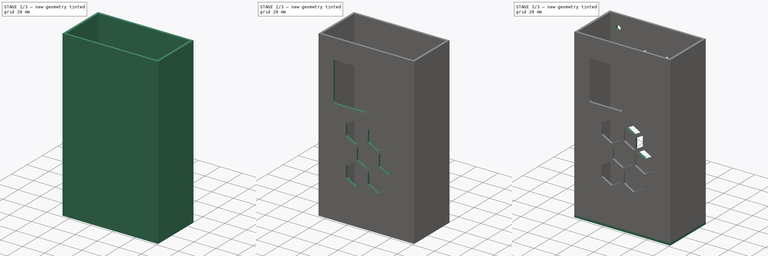
[diagram: build sequence overview — one tinted view per stage of 3, left to right]
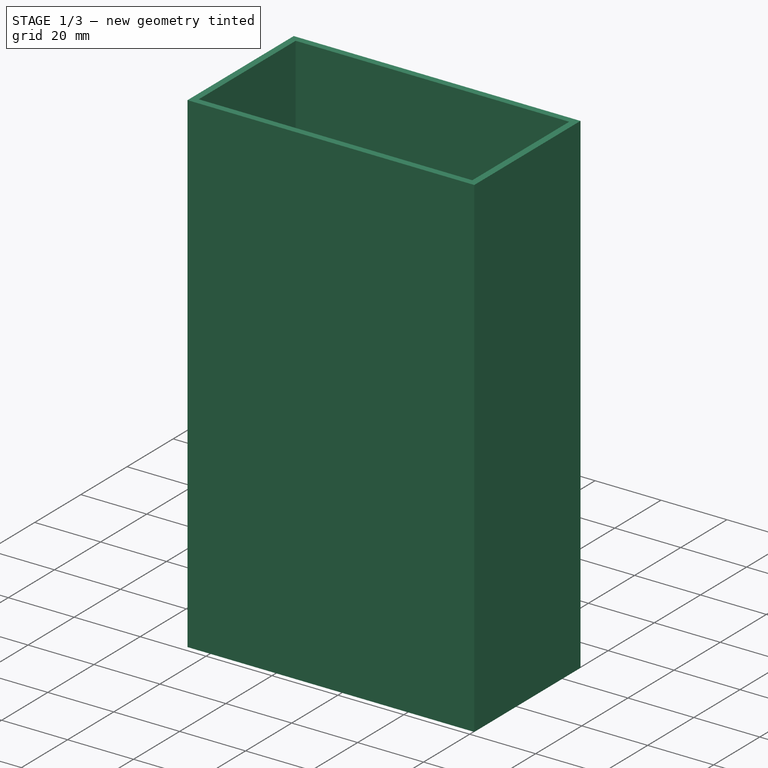
[diagram: stage 1 of 3 — iso view after this stage's code; geometry added in this stage tinted green]
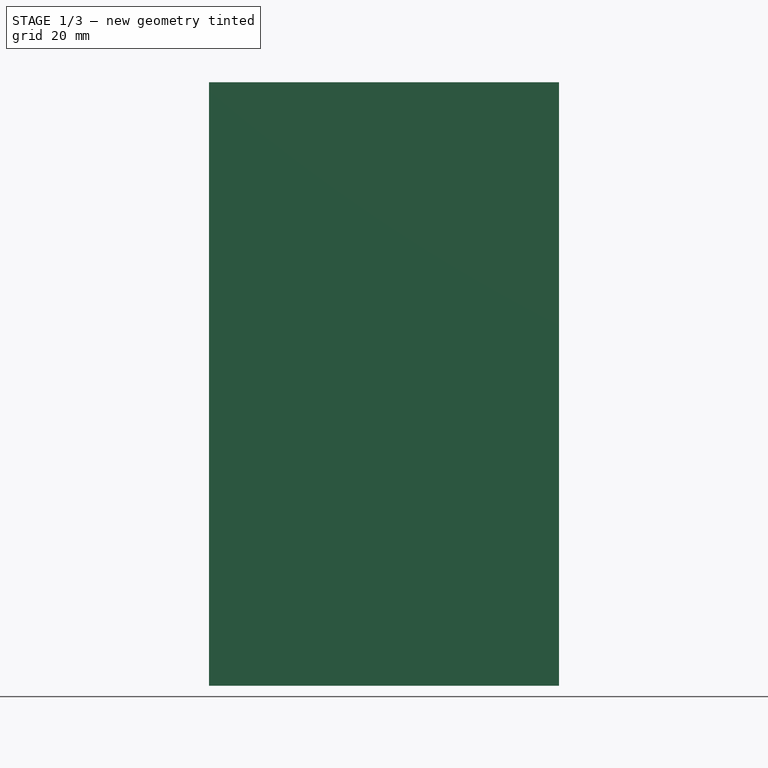
[diagram: stage 1 of 3 — front view after this stage's code; geometry added in this stage tinted green]
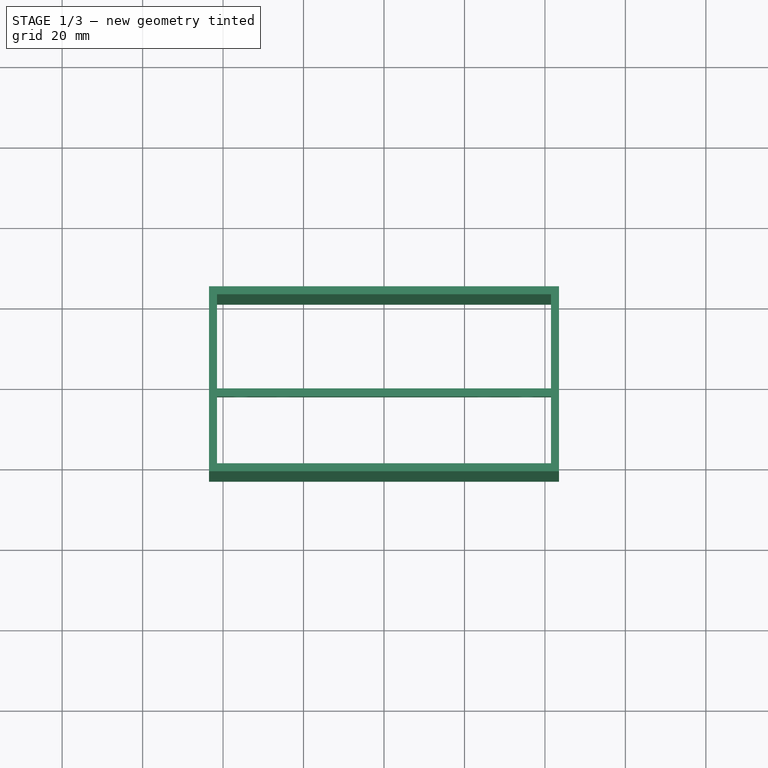
[diagram: stage 1 of 3 — top view after this stage's code; geometry added in this stage tinted green]
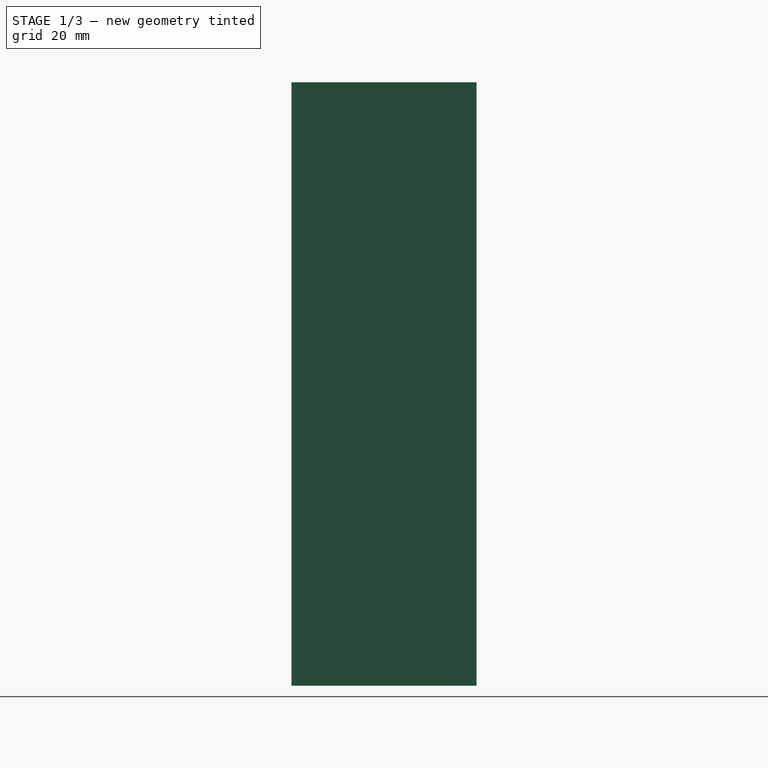
[diagram: stage 1 of 3 — right view after this stage's code; geometry added in this stage tinted green]
FCSTD DOCUMENT  (FreeCAD 0.19R24291 (Git))
Label: plotter-psu-case
License: All rights reserved
LicenseURL: http://en.wikipedia.org/wiki/All_rights_reserved
objects: Sketcher::SketchObject×5, PartDesign::Pad×3, PartDesign::Body×3, PartDesign::Pocket×2, Spreadsheet::Sheet×1, PartDesign::Fillet×1, App::Part×1
note: 20 computed .brp shape members not serialized (recipe doc carries the construction recipe); baked Part::Feature solids carry a one-line shape summary decoded from their .brp

FEATURE [Sketcher::SketchObject] Sketch
  FullyConstrained = true
  MapMode = 5
  Support = -> [XY_Plane001]
  expr: Constraints[12] = Spreadsheet.Thikness
  expr: Constraints[17] = Spreadsheet.Thikness
  expr: Constraints[18] = Spreadsheet.OuterLength
  expr: Constraints[19] = Spreadsheet.OuterWidth
  sketch-geometry (8):
    g0: LineSegment StartX=-43.5 StartY=23 StartZ=0 EndX=43.5 EndY=23 EndZ=0
    g1: LineSegment StartX=43.5 StartY=23 StartZ=0 EndX=43.5 EndY=-23 EndZ=0
    g2: LineSegment StartX=43.5 StartY=-23 StartZ=0 EndX=-43.5 EndY=-23 EndZ=0
    g3: LineSegment StartX=-43.5 StartY=-23 StartZ=0 EndX=-43.5 EndY=23 EndZ=0
    g4: LineSegment StartX=-41.5 StartY=21 StartZ=0 EndX=41.5 EndY=21 EndZ=0
    g5: LineSegment StartX=41.5 StartY=21 StartZ=0 EndX=41.5 EndY=-21 EndZ=0
    g6: LineSegment StartX=41.5 StartY=-21 StartZ=0 EndX=-41.5 EndY=-21 EndZ=0
    g7: LineSegment StartX=-41.5 StartY=-21 StartZ=0 EndX=-41.5 EndY=21 EndZ=0
  constraints (20):
    c: Coincident(g0,g1)
    c: Coincident(g1,g2)
    c: Coincident(g2,g3)
    c: Coincident(g3,g0)
    c: Symmetric(g1,g0,g-1)
    c: Symmetric(g2,g0,g-1)
    c: Vertical(g3)
    c: Horizontal(g0)
    c: Coincident(g4,g5)
    c: Coincident(g5,g6)
    c: Coincident(g6,g7)
    c: Coincident(g7,g4)
    c: DistanceX(g4,g0) = 2
    c: Symmetric(g4,g5,g-1)
    c: Symmetric(g6,g4,g-1)
    c: Vertical(g7)
    c: Horizontal(g4)
    c: DistanceY(g4,g0) = 2
    c: DistanceX(g2,g2) = 87
    c: DistanceY(g3,g3) = 46
FEATURE [Spreadsheet::Sheet] Spreadsheet
  cells = B4=Thikness; C4(Thikness)=2; B5=OuterLength; C5(OuterLength)==InnerLength + 2 * Thikness; B6=OuterWidth; C6(OuterWidth)==InnerWidth + 2 * Thikness; B7=OuterHeight; C7(OuterHeight)==InnerHeight; B8=InnerLength; C8(InnerLength)=83; B9=InnerWidth; C9(InnerWidth)=42; B10=InnerHeight; C10(InnerHeight)=150
FEATURE [PartDesign::Pad] Pad
  Direction = (1,1,1)
  Length = 150
  Length2 = 100
  Profile = -> Sketch
  Type = 0
  expr: Length = Spreadsheet.OuterHeight
FEATURE [PartDesign::Body] Body
  Group = -> [Sketch,Pad,Sketch002,Pocket,Fillet,Sketch003,Pocket001]
  Origin = -> Origin001
  Tip = -> Pocket001
FEATURE [Sketcher::SketchObject] Sketch004
  FullyConstrained = true
  MapMode = 5
  Placement = pos=(0,0,0) rot=(1,0,0;1.5708rad)
  Support = -> [XZ_Plane003]
  expr: Constraints[9] = Spreadsheet.OuterLength
  sketch-geometry (14):
    g0: LineSegment StartX=-43.5 StartY=13 StartZ=0 EndX=43.5 EndY=13 EndZ=0
    g1: LineSegment StartX=43.5 StartY=13 StartZ=0 EndX=43.5 EndY=0 EndZ=0
    g2: LineSegment StartX=43.5 StartY=0 StartZ=0 EndX=-43.5 EndY=0 EndZ=0
    g3: LineSegment StartX=-43.5 StartY=0 StartZ=0 EndX=-43.5 EndY=13 EndZ=0
    g4: Circle CenterX=-25 CenterY=4.5 CenterZ=0 NormalX=0 NormalY=0 NormalZ=1 AngleXU=0 Radius=2
    g5: Circle CenterX=25 CenterY=4.5 CenterZ=0 NormalX=0 NormalY=0 NormalZ=1 AngleXU=0 Radius=2
    g6: ArcOfCircle CenterX=35.5 CenterY=7.5 CenterZ=0 NormalX=0 NormalY=0 NormalZ=1 AngleXU=0 Radius=2 StartAngle=0 EndAngle=3.14159
    g7: ArcOfCircle CenterX=35.5 CenterY=4.5 CenterZ=0 NormalX=0 NormalY=0 NormalZ=1 AngleXU=0 Radius=2 StartAngle=3.14159 EndAngle=6.28319
    g8: LineSegment StartX=33.5 StartY=7.5 StartZ=0 EndX=33.5 EndY=4.5 EndZ=0
    g9: LineSegment StartX=37.5 StartY=7.5 StartZ=0 EndX=37.5 EndY=4.5 EndZ=0
    g10: ArcOfCircle CenterX=-35.5 CenterY=7.5 CenterZ=0 NormalX=0 NormalY=0 NormalZ=1 AngleXU=0 Radius=2 StartAngle=0 EndAngle=3.14159
    g11: ArcOfCircle CenterX=-35.5 CenterY=4.5 CenterZ=0 NormalX=0 NormalY=0 NormalZ=1 AngleXU=0 Radius=2 StartAngle=3.14159 EndAngle=6.28319
    g12: LineSegment StartX=-37.5 StartY=7.5 StartZ=0 EndX=-37.5 EndY=4.5 EndZ=0
    g13: LineSegment StartX=-33.5 StartY=7.5 StartZ=0 EndX=-33.5 EndY=4.5 EndZ=0
  constraints (35):
    c: Coincident(g0,g1)
    c: Coincident(g1,g2)
    c: Coincident(g2,g3)
    c: Coincident(g3,g0)
    c: Horizontal(g0)
    c: Horizontal(g2)
    c: Vertical(g1)
    c: Vertical(g3)
    c: Symmetric(g2,g1,g-1)
    c: DistanceX(g2,g2) = 87
    c: DistanceY(g1,g1) = 13
    c: Diameter(g4) = 4
    c: Equal(g4,g5)
    c: Symmetric(g4,g5,g-2)
    c: DistanceX(g4,g5) = 50
    c: DistanceY(g-1,g5) = 4.5
    c: Tangent(g6,g9) = 1.5708
    c: Tangent(g6,g8) = -1.5708
    c: Tangent(g8,g7) = -1.5708
    c: Tangent(g9,g7) = 1.5708
    c: Vertical(g8)
    c: Equal(g6,g7)
    c: Tangent(g10,g13) = 1.5708
    c: Tangent(g10,g12) = -1.5708
    c: Tangent(g12,g11) = -1.5708
    c: Tangent(g13,g11) = 1.5708
    c: Vertical(g12)
    c: Equal(g10,g11)
    c: Equal(g10,g6)
    c: Equal(g13,g8)
    c: Symmetric(g10,g6,g-2)
    c: DistanceX(g11,g7) = 71
    c: DistanceX(g11,g11) = 4
    c: DistanceY(g7,g6) = 3
    c: Horizontal(g11,g4)
FEATURE [PartDesign::Pad] Pad002
  Direction = (1,1,1)
  Length = 2
  Length2 = 100
  Placement = pos=(0,0,0) rot=(1,0,0;1.5708rad)
  Profile = -> Sketch004
  Type = 0
  expr: Length = Spreadsheet.Thikness
FEATURE [PartDesign::Body] Body002
  Group = -> [Sketch004,Pad002]
  Origin = -> Origin003
  Placement = pos=(0,23,150) rot=(0,0,1;0rad)
  Tip = -> Pad002
  expr: .Placement.Base.z = Spreadsheet.InnerHeight
  expr: .Placement.Base.y = Spreadsheet.OuterWidth / 2
FEATURE [App::Part] Part  label="PSUCase"
  Group = -> [Body,Body001,Body002]
  Origin = -> Origin
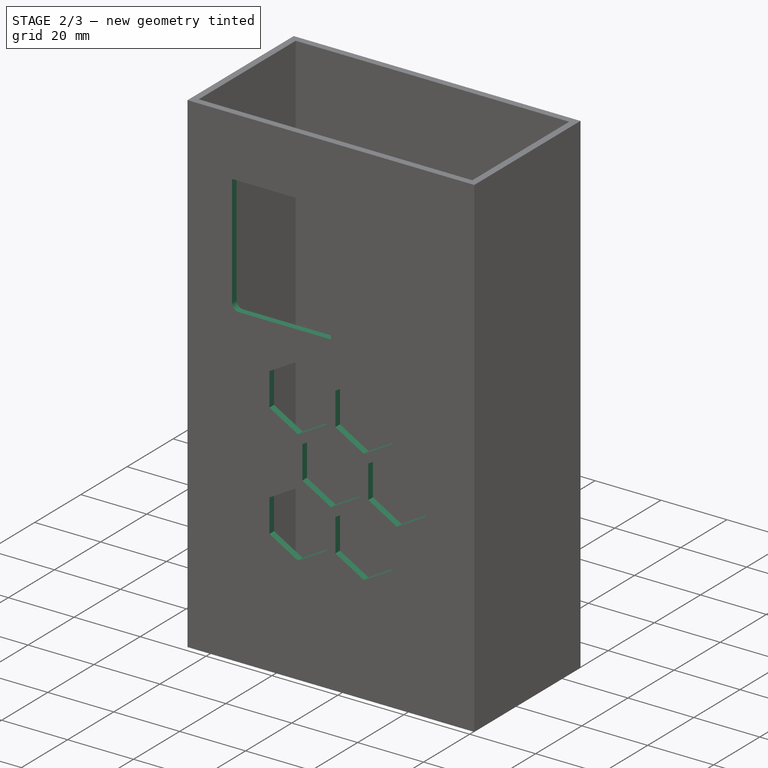
[diagram: stage 2 of 3 — iso view after this stage's code; geometry added in this stage tinted green]
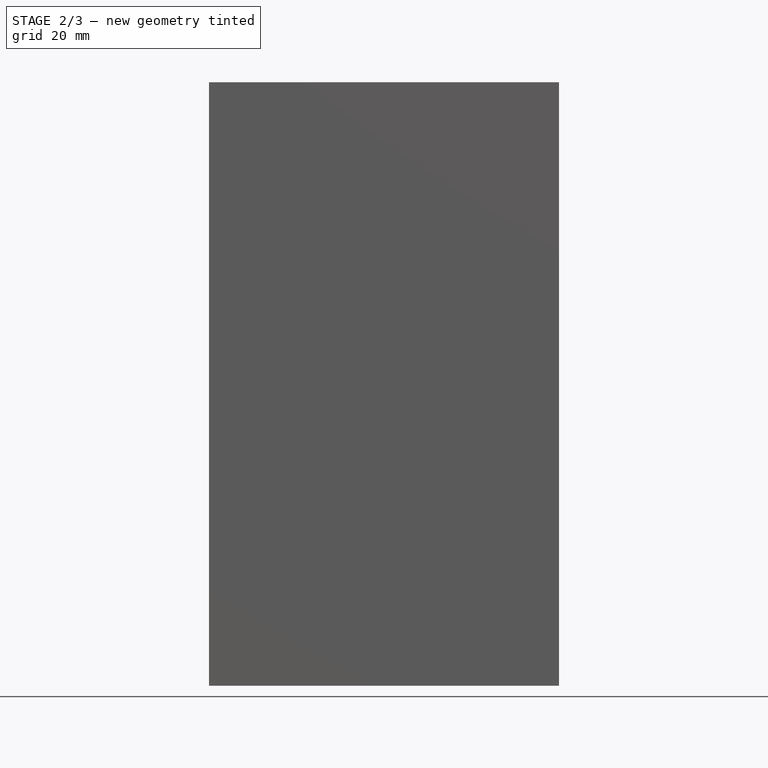
[diagram: stage 2 of 3 — front view after this stage's code; geometry added in this stage tinted green]
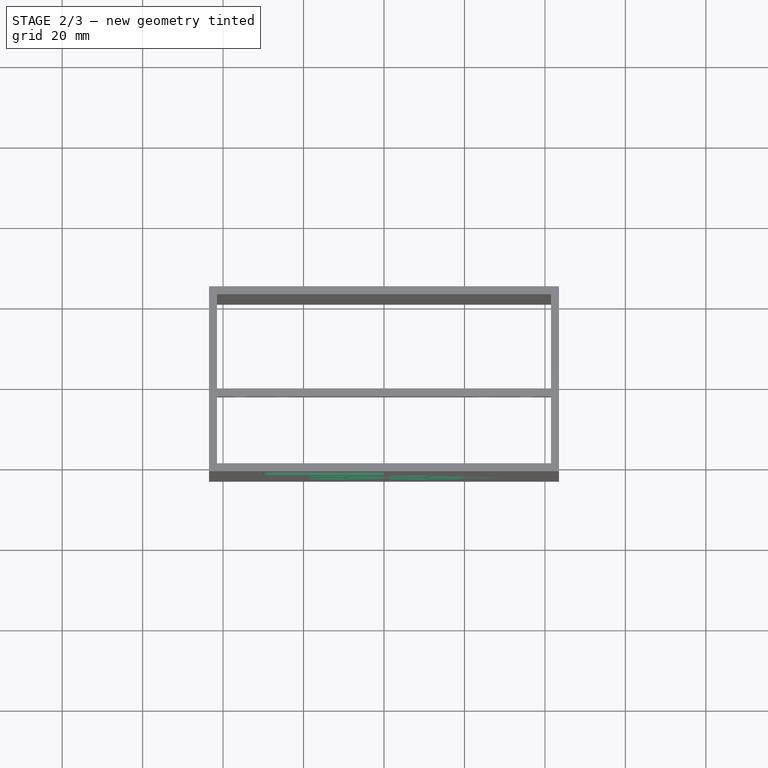
[diagram: stage 2 of 3 — top view after this stage's code; geometry added in this stage tinted green]
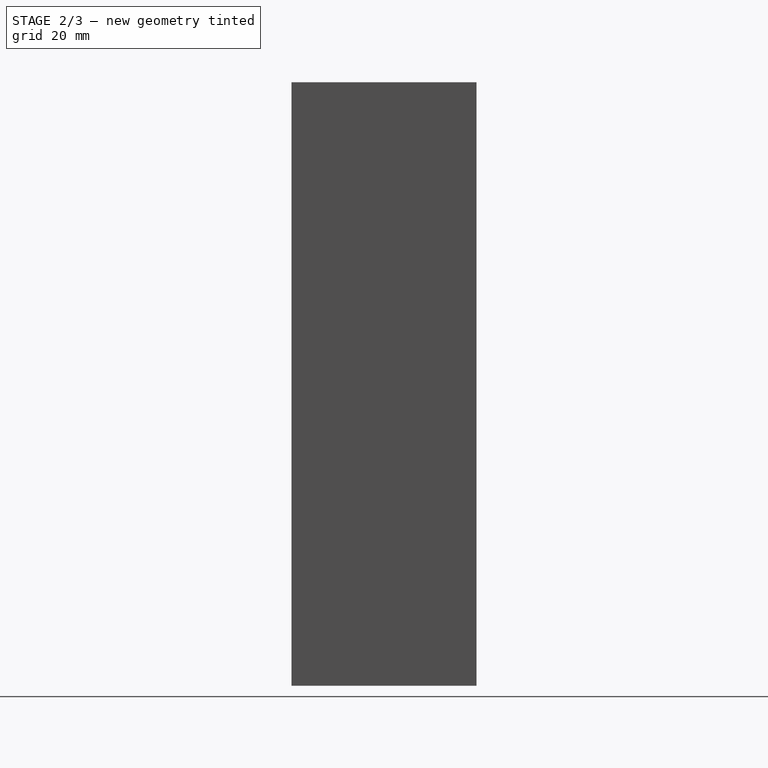
[diagram: stage 2 of 3 — right view after this stage's code; geometry added in this stage tinted green]
FEATURE [PartDesign::Body] Body001
  Group = -> [Sketch001,Pad001]
  Origin = -> Origin002
  Tip = -> Pad001
FEATURE [Sketcher::SketchObject] Sketch002
  FullyConstrained = true
  MapMode = 5
  Placement = pos=(-3.75e-14,-23,0) rot=(1,0,0;1.5708rad)
  Support = -> [Pad]
  sketch-geometry (46):
    g0: LineSegment StartX=-30 StartY=132 StartZ=0 EndX=0 EndY=132 EndZ=0
    g1: LineSegment StartX=0 StartY=132 StartZ=0 EndX=0 EndY=96 EndZ=0
    g2: LineSegment StartX=0 StartY=96 StartZ=0 EndX=-30 EndY=96 EndZ=0
    g3: LineSegment StartX=-30 StartY=96 StartZ=0 EndX=-30 EndY=132 EndZ=0
    g4: LineSegment StartX=-1.33975 StartY=72.3205 StartZ=0 EndX=-1.33975 EndY=82.3205 EndZ=0
    g5: LineSegment StartX=-1.33975 StartY=82.3205 StartZ=0 EndX=-10 EndY=87.3205 EndZ=0
    g6: LineSegment StartX=-10 StartY=87.3205 StartZ=0 EndX=-18.6603 EndY=82.3205 EndZ=0
    g7: LineSegment StartX=-18.6603 StartY=82.3205 StartZ=0 EndX=-18.6603 EndY=72.3205 EndZ=0
    g8: LineSegment StartX=-18.6603 StartY=72.3205 StartZ=0 EndX=-10 EndY=67.3205 EndZ=0
    g9: LineSegment StartX=-10 StartY=67.3205 StartZ=0 EndX=-1.33975 EndY=72.3205 EndZ=0
    g10: Circle CenterX=-10 CenterY=77.3205 CenterZ=0 NormalX=0 NormalY=0 NormalZ=1 AngleXU=0 Radius=10
    g11: LineSegment StartX=18.6603 StartY=72.3205 StartZ=0 EndX=18.6603 EndY=82.3205 EndZ=0
    g12: LineSegment StartX=18.6603 StartY=82.3205 StartZ=0 EndX=10 EndY=87.3205 EndZ=0
    g13: LineSegment StartX=10 StartY=87.3205 StartZ=0 EndX=1.33975 EndY=82.3205 EndZ=0
    g14: LineSegment StartX=1.33975 StartY=82.3205 StartZ=0 EndX=1.33975 EndY=72.3205 EndZ=0
    g15: LineSegment StartX=1.33975 StartY=72.3205 StartZ=0 EndX=10 EndY=67.3205 EndZ=0
    g16: LineSegment StartX=10 StartY=67.3205 StartZ=0 EndX=18.6603 EndY=72.3205 EndZ=0
    g17: Circle CenterX=10 CenterY=77.3205 CenterZ=0 NormalX=0 NormalY=0 NormalZ=1 AngleXU=0 Radius=10
    g18: LineSegment StartX=28.6603 StartY=55 StartZ=0 EndX=28.6603 EndY=65 EndZ=0
    g19: LineSegment StartX=28.6603 StartY=65 StartZ=0 EndX=20 EndY=70 EndZ=0
    g20: LineSegment StartX=20 StartY=70 StartZ=0 EndX=11.3397 EndY=65 EndZ=0
    g21: LineSegment StartX=11.3397 StartY=65 StartZ=0 EndX=11.3397 EndY=55 EndZ=0
    g22: LineSegment StartX=11.3397 StartY=55 StartZ=0 EndX=20 EndY=50 EndZ=0
    g23: LineSegment StartX=20 StartY=50 StartZ=0 EndX=28.6603 EndY=55 EndZ=0
    g24: Circle CenterX=20 CenterY=60 CenterZ=0 NormalX=0 NormalY=0 NormalZ=1 AngleXU=0 Radius=10
    g25: LineSegment StartX=18.6603 StartY=37.6795 StartZ=0 EndX=18.6603 EndY=47.6795 EndZ=0
    g26: LineSegment StartX=18.6603 StartY=47.6795 StartZ=0 EndX=10 EndY=52.6795 EndZ=0
    g27: LineSegment StartX=10 StartY=52.6795 StartZ=0 EndX=1.33975 EndY=47.6795 EndZ=0
    g28: LineSegment StartX=1.33975 StartY=47.6795 StartZ=0 EndX=1.33975 EndY=37.6795 EndZ=0
    g29: LineSegment StartX=1.33975 StartY=37.6795 StartZ=0 EndX=10 EndY=32.6795 EndZ=0
    g30: LineSegment StartX=10 StartY=32.6795 StartZ=0 EndX=18.6603 EndY=37.6795 EndZ=0
    g31: Circle CenterX=10 CenterY=42.6795 CenterZ=0 NormalX=0 NormalY=0 NormalZ=1 AngleXU=0 Radius=10
    g32: LineSegment StartX=8.66025 StartY=55 StartZ=0 EndX=8.66025 EndY=65 EndZ=0
    g33: LineSegment StartX=8.66025 StartY=65 StartZ=0 EndX=0 EndY=70 EndZ=0
    g34: LineSegment StartX=0 StartY=70 StartZ=0 EndX=-8.66025 EndY=65 EndZ=0
    g35: LineSegment StartX=-8.66025 StartY=65 StartZ=0 EndX=-8.66025 EndY=55 EndZ=0
    g36: LineSegment StartX=-8.66025 StartY=55 StartZ=0 EndX=0 EndY=50 EndZ=0
    g37: LineSegment StartX=0 StartY=50 StartZ=0 EndX=8.66025 EndY=55 EndZ=0
    g38: Circle CenterX=-7e-16 CenterY=60 CenterZ=0 NormalX=0 NormalY=0 NormalZ=1 AngleXU=0 Radius=10
    g39: LineSegment StartX=-1.33975 StartY=37.6795 StartZ=0 EndX=-1.33975 EndY=47.6795 EndZ=0
    g40: LineSegment StartX=-1.33975 StartY=47.6795 StartZ=0 EndX=-10 EndY=52.6795 EndZ=0
    g41: LineSegment StartX=-10 StartY=52.6795 StartZ=0 EndX=-18.6603 EndY=47.6795 EndZ=0
    g42: LineSegment StartX=-18.6603 StartY=47.6795 StartZ=0 EndX=-18.6603 EndY=37.6795 EndZ=0
    g43: LineSegment StartX=-18.6603 StartY=37.6795 StartZ=0 EndX=-10 EndY=32.6795 EndZ=0
    g44: LineSegment StartX=-10 StartY=32.6795 StartZ=0 EndX=-1.33975 EndY=37.6795 EndZ=0
    g45: Circle CenterX=-10 CenterY=42.6795 CenterZ=0 NormalX=0 NormalY=0 NormalZ=1 AngleXU=0 Radius=10
  constraints (114):
    c: Coincident(g0,g1)
    c: Coincident(g1,g2)
    c: Coincident(g2,g3)
    c: Coincident(g3,g0)
    c: Horizontal(g0)
    c: Horizontal(g2)
    c: Vertical(g1)
    c: Vertical(g3)
    c: DistanceX(g0,g0) = 30
    c: DistanceY(g1,g1) = 36
    c: DistanceY(g-1,g1) = 96
    c: Vertical(g1,g-1)
    c: Coincident(g4,g5)
    c: Coincident(g5,g6)
    c: Coincident(g6,g7)
    c: Coincident(g7,g8)
    c: Coincident(g8,g9)
    c: Coincident(g9,g4)
    c: Equal(g4, g5-g9) x5
    c: PointOnObject(g4,g10)
    c: PointOnObject(g5,g10)
    c: PointOnObject(g6,g10)
    c: PointOnObject(g7,g10)
    c: PointOnObject(g8,g10)
    c: PointOnObject(g9,g10)
    c: Vertical(g4)
    c: Coincident(g11,g12)
    c: Coincident(g12,g13)
    c: Coincident(g13,g14)
    c: Coincident(g14,g15)
    c: Coincident(g15,g16)
    c: Coincident(g16,g11)
    c: Equal(g11, g12-g16) x5
    c: PointOnObject(g11,g17)
    c: PointOnObject(g12,g17)
    c: PointOnObject(g13,g17)
    c: PointOnObject(g14,g17)
    c: PointOnObject(g15,g17)
    c: PointOnObject(g16,g17)
    c: Vertical(g11)
    c: Coincident(g18,g19)
    c: Coincident(g19,g20)
    c: Coincident(g20,g21)
    c: Coincident(g21,g22)
    c: Coincident(g22,g23)
    c: Coincident(g23,g18)
    c: Equal(g18, g19-g23) x5
    c: PointOnObject(g18,g24)
    c: PointOnObject(g19,g24)
    c: PointOnObject(g20,g24)
    c: PointOnObject(g21,g24)
    c: PointOnObject(g22,g24)
    c: PointOnObject(g23,g24)
    c: Vertical(g18)
    c: Coincident(g25,g26)
    c: Coincident(g26,g27)
    c: Coincident(g27,g28)
    c: Coincident(g28,g29)
    c: Coincident(g29,g30)
    c: Coincident(g30,g25)
    c: Equal(g25, g26-g30) x5
    c: PointOnObject(g25,g31)
    c: PointOnObject(g26,g31)
    c: PointOnObject(g27,g31)
    c: PointOnObject(g28,g31)
    c: PointOnObject(g29,g31)
    c: PointOnObject(g30,g31)
    c: Vertical(g25)
    c: Coincident(g32,g33)
    c: Coincident(g33,g34)
    c: Coincident(g34,g35)
    c: Coincident(g35,g36)
    c: Coincident(g36,g37)
    c: Coincident(g37,g32)
    c: Equal(g32, g33-g37) x5
    c: PointOnObject(g32,g38)
    c: PointOnObject(g33,g38)
    c: PointOnObject(g34,g38)
    c: PointOnObject(g35,g38)
    c: PointOnObject(g36,g38)
    c: PointOnObject(g37,g38)
    c: Vertical(g32)
    c: Coincident(g39,g40)
    c: Coincident(g40,g41)
    c: Coincident(g41,g42)
    c: Coincident(g42,g43)
    c: Coincident(g43,g44)
    c: Coincident(g44,g39)
    c: Equal(g39, g40-g44) x5
    c: PointOnObject(g39,g45)
    c: PointOnObject(g40,g45)
    c: PointOnObject(g41,g45)
    c: PointOnObject(g42,g45)
    c: PointOnObject(g43,g45)
    c: PointOnObject(g44,g45)
    c: Vertical(g39)
    c: Tangent(g10,g38)
    c: Tangent(g17,g10)
    c: Tangent(g38,g17)
    c: Tangent(g24,g17)
    c: Tangent(g24,g38)
    c: Tangent(g45,g38)
    c: Tangent(g31,g38)
    c: Tangent(g45,g31)
    c: Tangent(g31,g24)
    c: Distance(g27) = 10
    c: Distance(g33) = 10
    c: Distance(g39) = 10
    c: Distance(g5) = 10
    c: Distance(g13) = 10
    c: Distance(g20) = 10
    c: Horizontal(g39,g27)
    c: Vertical(g-1,g36)
    c: DistanceY(g-1,g36) = 50
FEATURE [PartDesign::Pocket] Pocket
  BaseFeature = -> Pad
  Length = 0
  Length2 = 100
  Profile = -> Sketch002
  Type = 2
FEATURE [PartDesign::Fillet] Fillet
  Base = -> Pocket [Edge106]
  BaseFeature = -> Pocket
  Radius = 2
  SupportTransform = false
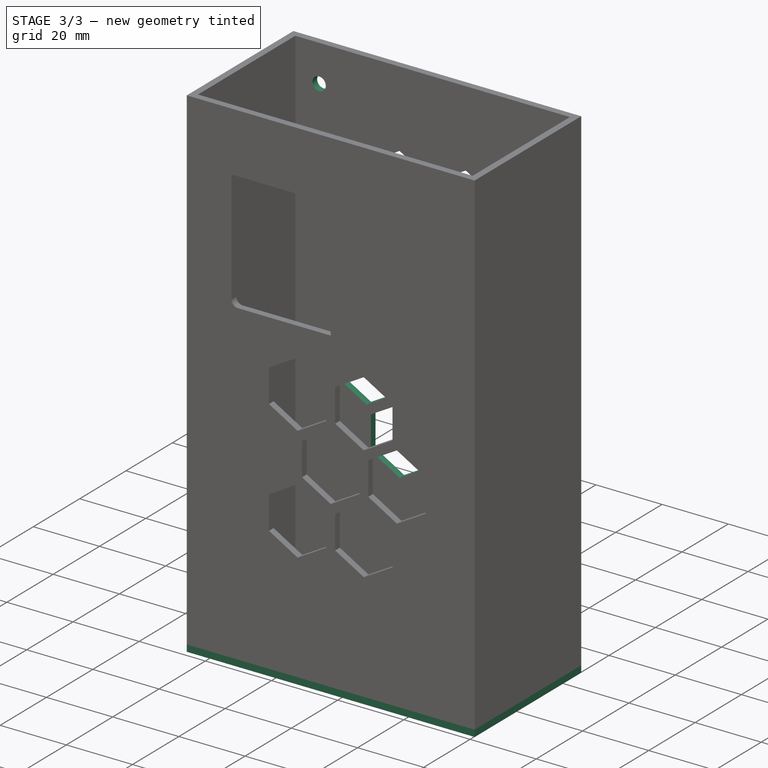
[diagram: stage 3 of 3 — iso view after this stage's code; geometry added in this stage tinted green]
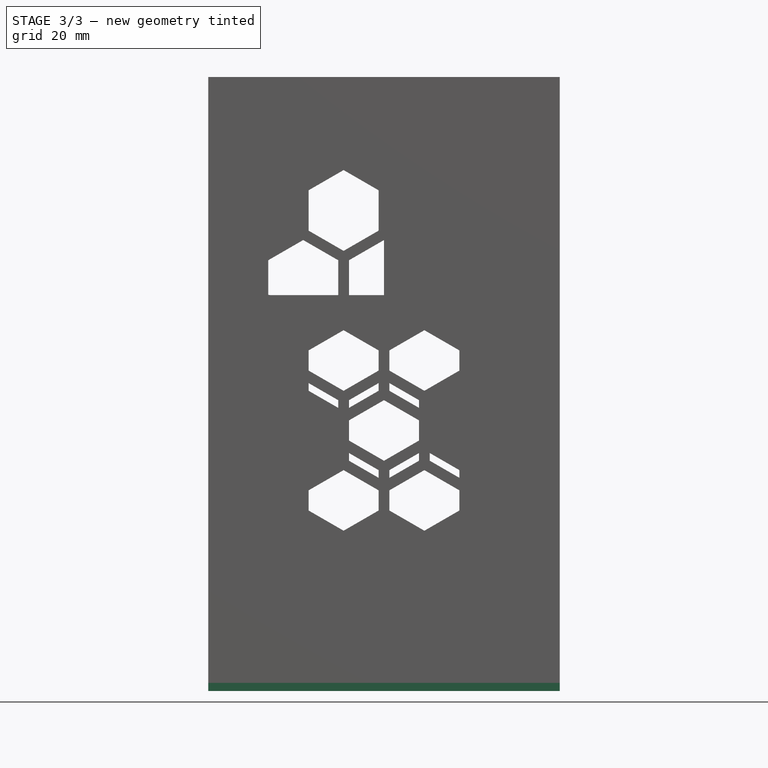
[diagram: stage 3 of 3 — front view after this stage's code; geometry added in this stage tinted green]
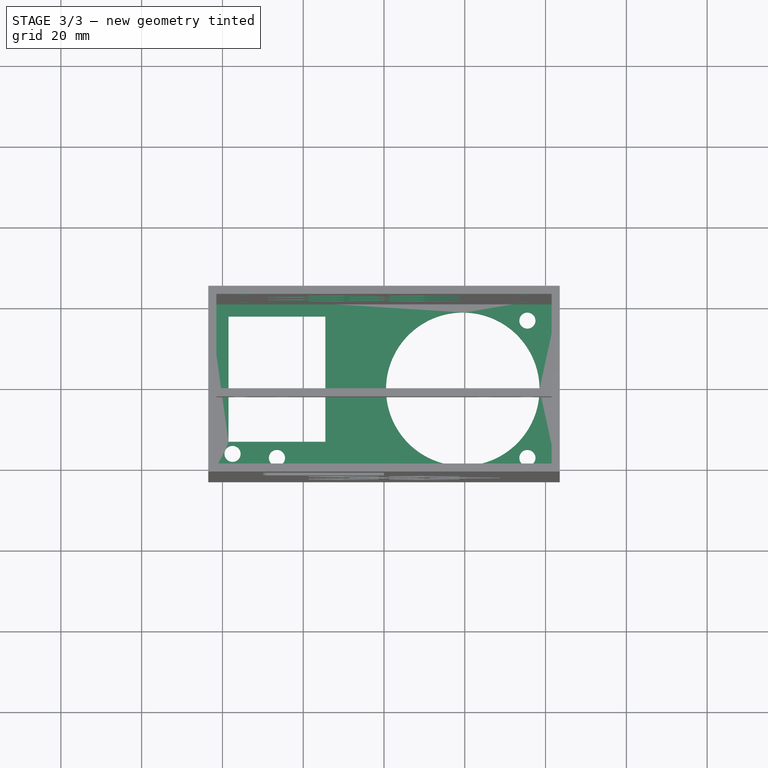
[diagram: stage 3 of 3 — top view after this stage's code; geometry added in this stage tinted green]
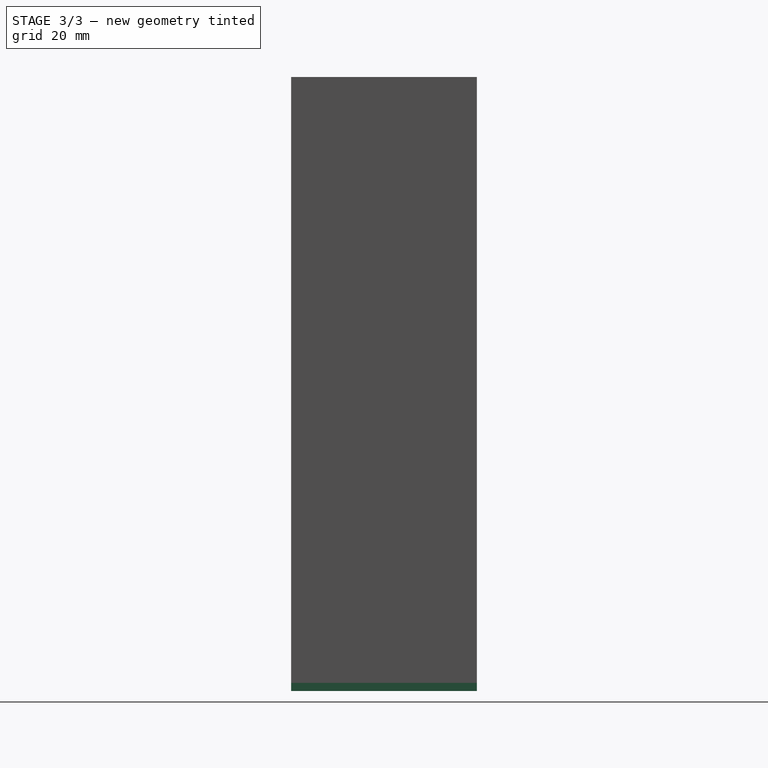
[diagram: stage 3 of 3 — right view after this stage's code; geometry added in this stage tinted green]
FEATURE [Sketcher::SketchObject] Sketch001
  FullyConstrained = true
  MapMode = 5
  Support = -> [XY_Plane002]
  expr: Constraints[35] = Spreadsheet.Thikness + 4
  expr: Constraints[36] = Spreadsheet.Thikness + 15
  expr: Constraints[34] = Spreadsheet.Thikness + 5
  expr: Constraints[33] = Spreadsheet.Thikness + 4
  expr: Constraints[30] = Spreadsheet.Thikness + 6
  expr: Constraints[32] = Spreadsheet.Thikness + 4
  expr: Constraints[29] = Spreadsheet.Thikness + 4
  expr: Constraints[8] = Spreadsheet.OuterLength
  expr: Constraints[9] = Spreadsheet.OuterWidth
  expr: Constraints[22] = 22 + Spreadsheet.Thikness
  expr: Constraints[23] = Spreadsheet.Thikness + 3
  expr: Constraints[24] = Spreadsheet.Thikness + 3
  sketch-geometry (13):
    g0: LineSegment StartX=-43.5 StartY=23 StartZ=0 EndX=43.5 EndY=23 EndZ=0
    g1: LineSegment StartX=43.5 StartY=23 StartZ=0 EndX=43.5 EndY=-23 EndZ=0
    g2: LineSegment StartX=43.5 StartY=-23 StartZ=0 EndX=-43.5 EndY=-23 EndZ=0
    g3: LineSegment StartX=-43.5 StartY=-23 StartZ=0 EndX=-43.5 EndY=23 EndZ=0
    g4: Circle CenterX=19.5 CenterY=0 CenterZ=0 NormalX=0 NormalY=0 NormalZ=1 AngleXU=0 Radius=19
    g5: LineSegment StartX=-38.5 StartY=18 StartZ=0 EndX=-14.5 EndY=18 EndZ=0
    g6: LineSegment StartX=-14.5 StartY=18 StartZ=0 EndX=-14.5 EndY=-13 EndZ=0
    g7: LineSegment StartX=-14.5 StartY=-13 StartZ=0 EndX=-38.5 EndY=-13 EndZ=0
    g8: LineSegment StartX=-38.5 StartY=-13 StartZ=0 EndX=-38.5 EndY=18 EndZ=0
    g9: Circle CenterX=35.5 CenterY=17 CenterZ=0 NormalX=0 NormalY=0 NormalZ=1 AngleXU=0 Radius=2
    g10: Circle CenterX=35.5 CenterY=-17 CenterZ=0 NormalX=0 NormalY=0 NormalZ=1 AngleXU=0 Radius=2
    g11: Circle CenterX=-37.5 CenterY=-16 CenterZ=0 NormalX=0 NormalY=0 NormalZ=1 AngleXU=0 Radius=2
    g12: Circle CenterX=-26.5 CenterY=-17 CenterZ=0 NormalX=0 NormalY=0 NormalZ=1 AngleXU=0 Radius=2
  constraints (37):
    c: Coincident(g0,g1)
    c: Coincident(g1,g2)
    c: Coincident(g2,g3)
    c: Coincident(g3,g0)
    c: Horizontal(g0)
    c: Vertical(g1)
    c: Symmetric(g0,g1,g-1)
    c: Symmetric(g2,g0,g-1)
    c: DistanceX(g0,g0) = 87
    c: DistanceY(g3,g3) = 46
    c: PointOnObject(g4,g-1)
    c: Diameter(g4) = 38
    c: Coincident(g5,g6)
    c: Coincident(g6,g7)
    c: Coincident(g7,g8)
    c: Coincident(g8,g5)
    c: Horizontal(g5)
    c: Horizontal(g7)
    c: Vertical(g6)
    c: Vertical(g8)
    c: DistanceX(g5,g5) = 24
    c: DistanceY(g6,g6) = 31
    c: DistanceX(g4,g1) = 24
    c: DistanceX(g2,g7) = 5
    c: DistanceY(g5,g0) = 5
    c: Diameter(g10) = 4
    c: Equal(g10,g12)
    c: Equal(g10,g11)
    c: Equal(g10,g9)
    c: DistanceY(g9,g0) = 6
    c: DistanceX(g9,g0) = 8
    c: Vertical(g10,g9)
    c: DistanceY(g1,g10) = 6
    c: DistanceX(g2,g11) = 6
    c: DistanceY(g2,g11) = 7
    c: DistanceY(g2,g12) = 6
    c: DistanceX(g2,g12) = 17
FEATURE [PartDesign::Pad] Pad001
  Direction = (1,1,1)
  Length = 2
  Length2 = 100
  Profile = -> Sketch001
  Reversed = true
  Type = 0
  expr: Length = Spreadsheet.Thikness
FEATURE [Sketcher::SketchObject] Sketch003
  FullyConstrained = true
  MapMode = 5
  Placement = pos=(0,23,0) rot=(0,0.707107,0.707107;3.14159rad)
  Support = -> [Fillet]
  sketch-geometry (74):
    g0: Circle CenterX=-34.3 CenterY=138.8 CenterZ=0 NormalX=0 NormalY=0 NormalZ=1 AngleXU=0 Radius=2
    g1: Circle CenterX=34.3 CenterY=138.8 CenterZ=0 NormalX=0 NormalY=0 NormalZ=1 AngleXU=0 Radius=2
    g2: Circle CenterX=-34.3 CenterY=28.6 CenterZ=0 NormalX=0 NormalY=0 NormalZ=1 AngleXU=0 Radius=2
    g3: Circle CenterX=34.3 CenterY=26.6 CenterZ=0 NormalX=0 NormalY=0 NormalZ=1 AngleXU=0 Radius=2
    g4: LineSegment StartX=8.66025 StartY=94.641 StartZ=0 EndX=8.66025 EndY=104.641 EndZ=0
    g5: LineSegment StartX=8.66025 StartY=104.641 StartZ=0 EndX=-7.11e-14 EndY=109.641 EndZ=0
    g6: LineSegment StartX=-7.11e-14 StartY=109.641 StartZ=0 EndX=-8.66025 EndY=104.641 EndZ=0
    g7: LineSegment StartX=-8.66025 StartY=104.641 StartZ=0 EndX=-8.66025 EndY=94.641 EndZ=0
    g8: LineSegment StartX=-8.66025 StartY=94.641 StartZ=0 EndX=-7.28e-14 EndY=89.641 EndZ=0
    g9: LineSegment StartX=-7.28e-14 StartY=89.641 StartZ=0 EndX=8.66025 EndY=94.641 EndZ=0
    g10: Circle CenterX=-7.41e-14 CenterY=99.641 CenterZ=0 NormalX=0 NormalY=0 NormalZ=1 AngleXU=0 Radius=10
    g11: LineSegment StartX=28.6603 StartY=94.641 StartZ=0 EndX=28.6603 EndY=104.641 EndZ=0
    g12: LineSegment StartX=28.6603 StartY=104.641 StartZ=0 EndX=20 EndY=109.641 EndZ=0
    g13: LineSegment StartX=20 StartY=109.641 StartZ=0 EndX=11.3397 EndY=104.641 EndZ=0
    g14: LineSegment StartX=11.3397 StartY=104.641 StartZ=0 EndX=11.3397 EndY=94.641 EndZ=0
    g15: LineSegment StartX=11.3397 StartY=94.641 StartZ=0 EndX=20 EndY=89.641 EndZ=0
    g16: LineSegment StartX=20 StartY=89.641 StartZ=0 EndX=28.6603 EndY=94.641 EndZ=0
    g17: Circle CenterX=20 CenterY=99.641 CenterZ=0 NormalX=0 NormalY=0 NormalZ=1 AngleXU=0 Radius=10
    g18: LineSegment StartX=-1.33975 StartY=77.3205 StartZ=0 EndX=-1.33975 EndY=87.3205 EndZ=0
    g19: LineSegment StartX=-1.33975 StartY=87.3205 StartZ=0 EndX=-10 EndY=92.3205 EndZ=0
    g20: LineSegment StartX=-10 StartY=92.3205 StartZ=0 EndX=-18.6603 EndY=87.3205 EndZ=0
    g21: LineSegment StartX=-18.6603 StartY=87.3205 StartZ=0 EndX=-18.6603 EndY=77.3205 EndZ=0
    g22: LineSegment StartX=-18.6603 StartY=77.3205 StartZ=0 EndX=-10 EndY=72.3205 EndZ=0
    g23: LineSegment StartX=-10 StartY=72.3205 StartZ=0 EndX=-1.33975 EndY=77.3205 EndZ=0
    g24: Circle CenterX=-10 CenterY=82.3205 CenterZ=0 NormalX=0 NormalY=0 NormalZ=1 AngleXU=0 Radius=10
    g25: LineSegment StartX=18.6603 StartY=77.3205 StartZ=0 EndX=18.6603 EndY=87.3205 EndZ=0
    g26: LineSegment StartX=18.6603 StartY=87.3205 StartZ=0 EndX=10 EndY=92.3205 EndZ=0
    g27: LineSegment StartX=10 StartY=92.3205 StartZ=0 EndX=1.33975 EndY=87.3205 EndZ=0
    g28: LineSegment StartX=1.33975 StartY=87.3205 StartZ=0 EndX=1.33975 EndY=77.3205 EndZ=0
    g29: LineSegment StartX=1.33975 StartY=77.3205 StartZ=0 EndX=10 EndY=72.3205 EndZ=0
    g30: LineSegment StartX=10 StartY=72.3205 StartZ=0 EndX=18.6603 EndY=77.3205 EndZ=0
    g31: Circle CenterX=10 CenterY=82.3205 CenterZ=0 NormalX=0 NormalY=0 NormalZ=1 AngleXU=0 Radius=10
    g32: LineSegment StartX=-1.33975 StartY=111.962 StartZ=0 EndX=-1.33975 EndY=121.962 EndZ=0
    g33: LineSegment StartX=-1.33975 StartY=121.962 StartZ=0 EndX=-10 EndY=126.962 EndZ=0
    g34: LineSegment StartX=-10 StartY=126.962 StartZ=0 EndX=-18.6603 EndY=121.962 EndZ=0
    g35: LineSegment StartX=-18.6603 StartY=121.962 StartZ=0 EndX=-18.6603 EndY=111.962 EndZ=0
    g36: LineSegment StartX=-18.6603 StartY=111.962 StartZ=0 EndX=-10 EndY=106.962 EndZ=0
    g37: LineSegment StartX=-10 StartY=106.962 StartZ=0 EndX=-1.33975 EndY=111.962 EndZ=0
    g38: Circle CenterX=-10 CenterY=116.962 CenterZ=0 NormalX=0 NormalY=0 NormalZ=1 AngleXU=0 Radius=10
    g39: LineSegment StartX=18.6603 StartY=111.962 StartZ=0 EndX=18.6603 EndY=121.962 EndZ=0
    g40: LineSegment StartX=18.6603 StartY=121.962 StartZ=0 EndX=10 EndY=126.962 EndZ=0
    g41: LineSegment StartX=10 StartY=126.962 StartZ=0 EndX=1.33975 EndY=121.962 EndZ=0
    g42: LineSegment StartX=1.33975 StartY=121.962 StartZ=0 EndX=1.33975 EndY=111.962 EndZ=0
    g43: LineSegment StartX=1.33975 StartY=111.962 StartZ=0 EndX=10 EndY=106.962 EndZ=0
    g44: LineSegment StartX=10 StartY=106.962 StartZ=0 EndX=18.6603 EndY=111.962 EndZ=0
    g45: Circle CenterX=10 CenterY=116.962 CenterZ=0 NormalX=0 NormalY=0 NormalZ=1 AngleXU=0 Radius=10
    g46: LineSegment StartX=8.66025 StartY=60 StartZ=0 EndX=8.66025 EndY=70 EndZ=0
    g47: LineSegment StartX=8.66025 StartY=70 StartZ=0 EndX=-1.8e-15 EndY=75 EndZ=0
    g48: LineSegment StartX=-1.8e-15 StartY=75 StartZ=0 EndX=-8.66025 EndY=70 EndZ=0
    g49: LineSegment StartX=-8.66025 StartY=70 StartZ=0 EndX=-8.66025 EndY=60 EndZ=0
    g50: LineSegment StartX=-8.66025 StartY=60 StartZ=0 EndX=0 EndY=55 EndZ=0
    g51: LineSegment StartX=0 StartY=55 StartZ=0 EndX=8.66025 EndY=60 EndZ=0
    g52: Circle CenterX=-7.93e-14 CenterY=65 CenterZ=0 NormalX=0 NormalY=0 NormalZ=1 AngleXU=0 Radius=10
    g53: LineSegment StartX=28.6603 StartY=60 StartZ=0 EndX=28.6603 EndY=70 EndZ=0
    g54: LineSegment StartX=28.6603 StartY=70 StartZ=0 EndX=20 EndY=75 EndZ=0
    g55: LineSegment StartX=20 StartY=75 StartZ=0 EndX=11.3397 EndY=70 EndZ=0
    g56: LineSegment StartX=11.3397 StartY=70 StartZ=0 EndX=11.3397 EndY=60 EndZ=0
    g57: LineSegment StartX=11.3397 StartY=60 StartZ=0 EndX=20 EndY=55 EndZ=0
    g58: LineSegment StartX=20 StartY=55 StartZ=0 EndX=28.6603 EndY=60 EndZ=0
    g59: Circle CenterX=20 CenterY=65 CenterZ=0 NormalX=0 NormalY=0 NormalZ=1 AngleXU=0 Radius=10
    g60: LineSegment StartX=10 StartY=57.6795 StartZ=0 EndX=1.33975 EndY=52.6795 EndZ=0
    g61: LineSegment StartX=18.6603 StartY=42.6795 StartZ=0 EndX=18.6603 EndY=52.6795 EndZ=0
    g62: LineSegment StartX=18.6603 StartY=52.6795 StartZ=0 EndX=10 EndY=57.6795 EndZ=0
    g63: LineSegment StartX=1.33975 StartY=52.6795 StartZ=0 EndX=1.33975 EndY=42.6795 EndZ=0
    g64: LineSegment StartX=1.33975 StartY=42.6795 StartZ=0 EndX=10 EndY=37.6795 EndZ=0
    g65: LineSegment StartX=10 StartY=37.6795 StartZ=0 EndX=18.6603 EndY=42.6795 EndZ=0
    g66: Circle CenterX=10 CenterY=47.6795 CenterZ=0 NormalX=0 NormalY=0 NormalZ=1 AngleXU=0 Radius=10
    g67: LineSegment StartX=-1.33975 StartY=42.6795 StartZ=0 EndX=-1.33975 EndY=52.6795 EndZ=0
    g68: LineSegment StartX=-1.33975 StartY=52.6795 StartZ=0 EndX=-10 EndY=57.6795 EndZ=0
    g69: LineSegment StartX=-10 StartY=57.6795 StartZ=0 EndX=-18.6603 EndY=52.6795 EndZ=0
    g70: LineSegment StartX=-18.6603 StartY=52.6795 StartZ=0 EndX=-18.6603 EndY=42.6795 EndZ=0
    g71: LineSegment StartX=-18.6603 StartY=42.6795 StartZ=0 EndX=-10 EndY=37.6795 EndZ=0
    g72: LineSegment StartX=-10 StartY=37.6795 StartZ=0 EndX=-1.33975 EndY=42.6795 EndZ=0
    g73: Circle CenterX=-10 CenterY=47.6795 CenterZ=0 NormalX=0 NormalY=0 NormalZ=1 AngleXU=0 Radius=10
  constraints (185):
    c: Diameter(g2) = 4
    c: Equal(g2,g3)
    c: Equal(g2,g1)
    c: Equal(g2,g0)
    c: Symmetric(g0,g1,g-2)
    c: Vertical(g1,g3)
    c: DistanceX(g0,g1) = 68.6
    c: Vertical(g0,g2)
    c: DistanceY(g2,g0) = 110.2
    c: DistanceY(g3,g1) = 112.2
    c: DistanceY(g-1,g2) = 28.6
    c: Coincident(g4,g5)
    c: Coincident(g5,g6)
    c: Coincident(g6,g7)
    c: Coincident(g7,g8)
    c: Coincident(g8,g9)
    c: Coincident(g9,g4)
    c: Equal(g4, g5-g9) x5
    c: PointOnObject(g4,g10)
    c: PointOnObject(g5,g10)
    c: PointOnObject(g6,g10)
    c: PointOnObject(g7,g10)
    c: PointOnObject(g8,g10)
    c: PointOnObject(g9,g10)
    c: Vertical(g4)
    c: Coincident(g11,g12)
    c: Coincident(g12,g13)
    c: Coincident(g13,g14)
    c: Coincident(g14,g15)
    c: Coincident(g15,g16)
    c: Coincident(g16,g11)
    c: Equal(g11, g12-g16) x5
    c: PointOnObject(g11,g17)
    c: PointOnObject(g12,g17)
    c: PointOnObject(g13,g17)
    c: PointOnObject(g14,g17)
    c: PointOnObject(g15,g17)
    c: PointOnObject(g16,g17)
    c: Vertical(g11)
    c: Equal(g9,g16) = 10
    c: Coincident(g18,g19)
    c: Coincident(g19,g20)
    c: Coincident(g20,g21)
    c: Coincident(g21,g22)
    c: Coincident(g22,g23)
    c: Coincident(g23,g18)
    c: Equal(g18, g19-g23) x5
    c: PointOnObject(g18,g24)
    c: PointOnObject(g19,g24)
    c: PointOnObject(g20,g24)
    c: PointOnObject(g21,g24)
    c: PointOnObject(g22,g24)
    c: PointOnObject(g23,g24)
    c: Vertical(g18)
    c: Equal(g9,g23) = 10
    c: Coincident(g25,g26)
    c: Coincident(g26,g27)
    c: Coincident(g27,g28)
    c: Coincident(g28,g29)
    c: Coincident(g29,g30)
    c: Coincident(g30,g25)
    c: Equal(g25, g26-g30) x5
    c: PointOnObject(g25,g31)
    c: PointOnObject(g26,g31)
    c: PointOnObject(g27,g31)
    c: PointOnObject(g28,g31)
    c: PointOnObject(g29,g31)
    c: PointOnObject(g30,g31)
    c: Vertical(g25)
    c: Equal(g23,g30) = 10
    c: Coincident(g32,g33)
    c: Coincident(g33,g34)
    c: Coincident(g34,g35)
    c: Coincident(g35,g36)
    c: Coincident(g36,g37)
    c: Coincident(g37,g32)
    c: Equal(g32, g33-g37) x5
    c: PointOnObject(g32,g38)
    c: PointOnObject(g33,g38)
    c: PointOnObject(g34,g38)
    c: PointOnObject(g35,g38)
    c: PointOnObject(g36,g38)
    c: PointOnObject(g37,g38)
    c: Vertical(g32)
    c: Equal(g9,g37) = 10
    c: Coincident(g39,g40)
    c: Coincident(g40,g41)
    c: Coincident(g41,g42)
    c: Coincident(g42,g43)
    c: Coincident(g43,g44)
    c: Coincident(g44,g39)
    c: Equal(g39, g40-g44) x5
    c: PointOnObject(g39,g45)
    c: PointOnObject(g40,g45)
    c: PointOnObject(g41,g45)
    c: PointOnObject(g42,g45)
    c: PointOnObject(g43,g45)
    c: PointOnObject(g44,g45)
    c: Vertical(g39)
    c: Equal(g37,g44) = 10
    c: Coincident(g46,g47)
    c: Coincident(g47,g48)
    c: Coincident(g48,g49)
    c: Coincident(g49,g50)
    c: Coincident(g50,g51)
    c: Coincident(g51,g46)
    c: Equal(g46, g47-g51) x5
    c: PointOnObject(g46,g52)
    c: PointOnObject(g47,g52)
    c: PointOnObject(g48,g52)
    c: PointOnObject(g49,g52)
    c: PointOnObject(g50,g52)
    c: PointOnObject(g51,g52)
    c: Vertical(g46)
    c: Equal(g37,g51) = 10
    c: Coincident(g53,g54)
    c: Coincident(g54,g55)
    c: Coincident(g55,g56)
    c: Coincident(g56,g57)
    c: Coincident(g57,g58)
    c: Coincident(g58,g53)
    c: Equal(g53, g54-g58) x5
    c: PointOnObject(g53,g59)
    c: PointOnObject(g54,g59)
    c: PointOnObject(g55,g59)
    c: PointOnObject(g56,g59)
    c: PointOnObject(g57,g59)
    c: PointOnObject(g58,g59)
    c: Vertical(g53)
    c: Equal(g51,g58) = 10
    c: Horizontal(g32,g42)
    c: Coincident(g61,g62)
    c: Coincident(g62,g60)
    c: Coincident(g60,g63)
    c: Coincident(g63,g64)
    c: Coincident(g64,g65)
    c: Coincident(g65,g61)
    c: Equal(g61,g62)
    c: Equal(g61,g60)
    c: Equal(g61,g63)
    c: Equal(g61,g64)
    c: Equal(g61,g65)
    c: PointOnObject(g61,g66)
    c: PointOnObject(g62,g66)
    c: PointOnObject(g60,g66)
    c: PointOnObject(g63,g66)
    c: PointOnObject(g64,g66)
    c: PointOnObject(g65,g66)
    c: Vertical(g61)
    c: Coincident(g67,g68)
    c: Coincident(g68,g69)
    c: Coincident(g69,g70)
    c: Coincident(g70,g71)
    c: Coincident(g71,g72)
    c: Coincident(g72,g67)
    c: Equal(g67, g68-g72) x5
    c: PointOnObject(g67,g73)
    c: PointOnObject(g68,g73)
    c: PointOnObject(g69,g73)
    c: PointOnObject(g70,g73)
    c: PointOnObject(g71,g73)
    c: PointOnObject(g72,g73)
    c: Vertical(g67)
    c: Horizontal(g67,g60)
    c: Tangent(g38,g10)
    c: Tangent(g45,g10)
    c: Tangent(g38,g45)
    c: Tangent(g45,g17)
    c: Tangent(g17,g10)
    c: Tangent(g24,g10)
    c: Tangent(g31,g17)
    c: Tangent(g24,g31)
    c: Tangent(g10,g31)
    c: Tangent(g24,g52)
    c: Tangent(g31,g52)
    c: Tangent(g59,g31)
    c: Tangent(g52,g59)
    c: Tangent(g73,g52)
    c: Tangent(g66,g59)
    c: Tangent(g52,g66)
    c: Tangent(g73,g66)
    c: Distance(g71) = 10
    c: Vertical(g50,g-1)
    c: Distance(g64) = 10
    c: DistanceY(g-1,g50) = 55
FEATURE [PartDesign::Pocket] Pocket001
  BaseFeature = -> Fillet
  Length = 5
  Length2 = 100
  Profile = -> Sketch003
  Type = 2
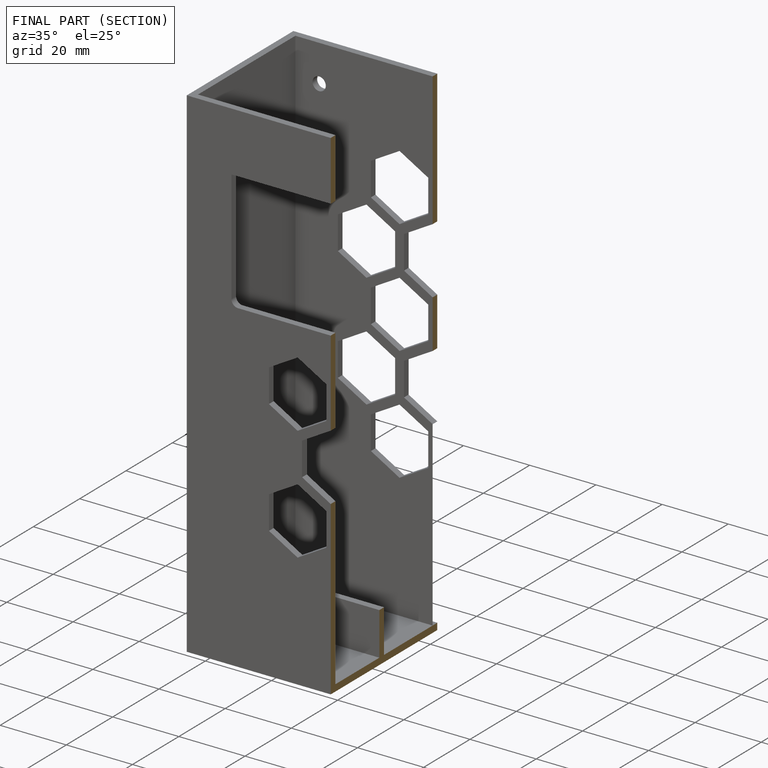
[diagram: finished part — half-section view (interior)]
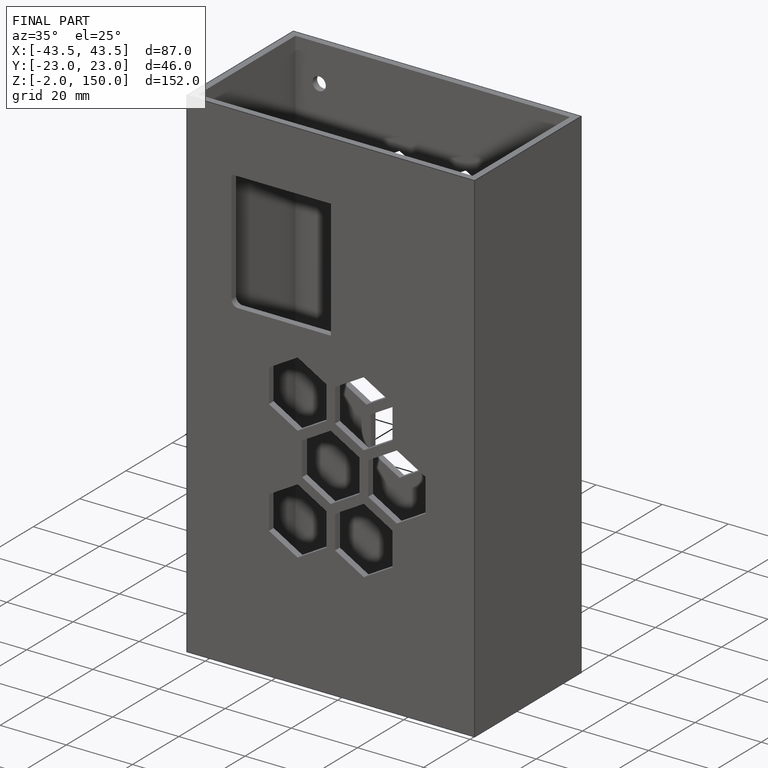
[diagram: finished part — iso view with bounding-box wireframe]
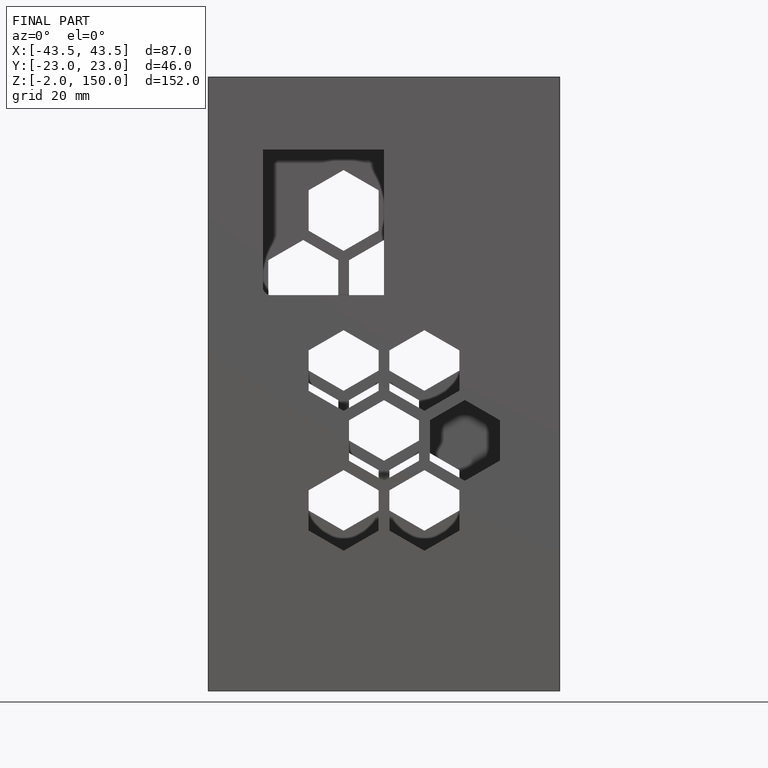
[diagram: finished part — front view with bounding-box wireframe]
